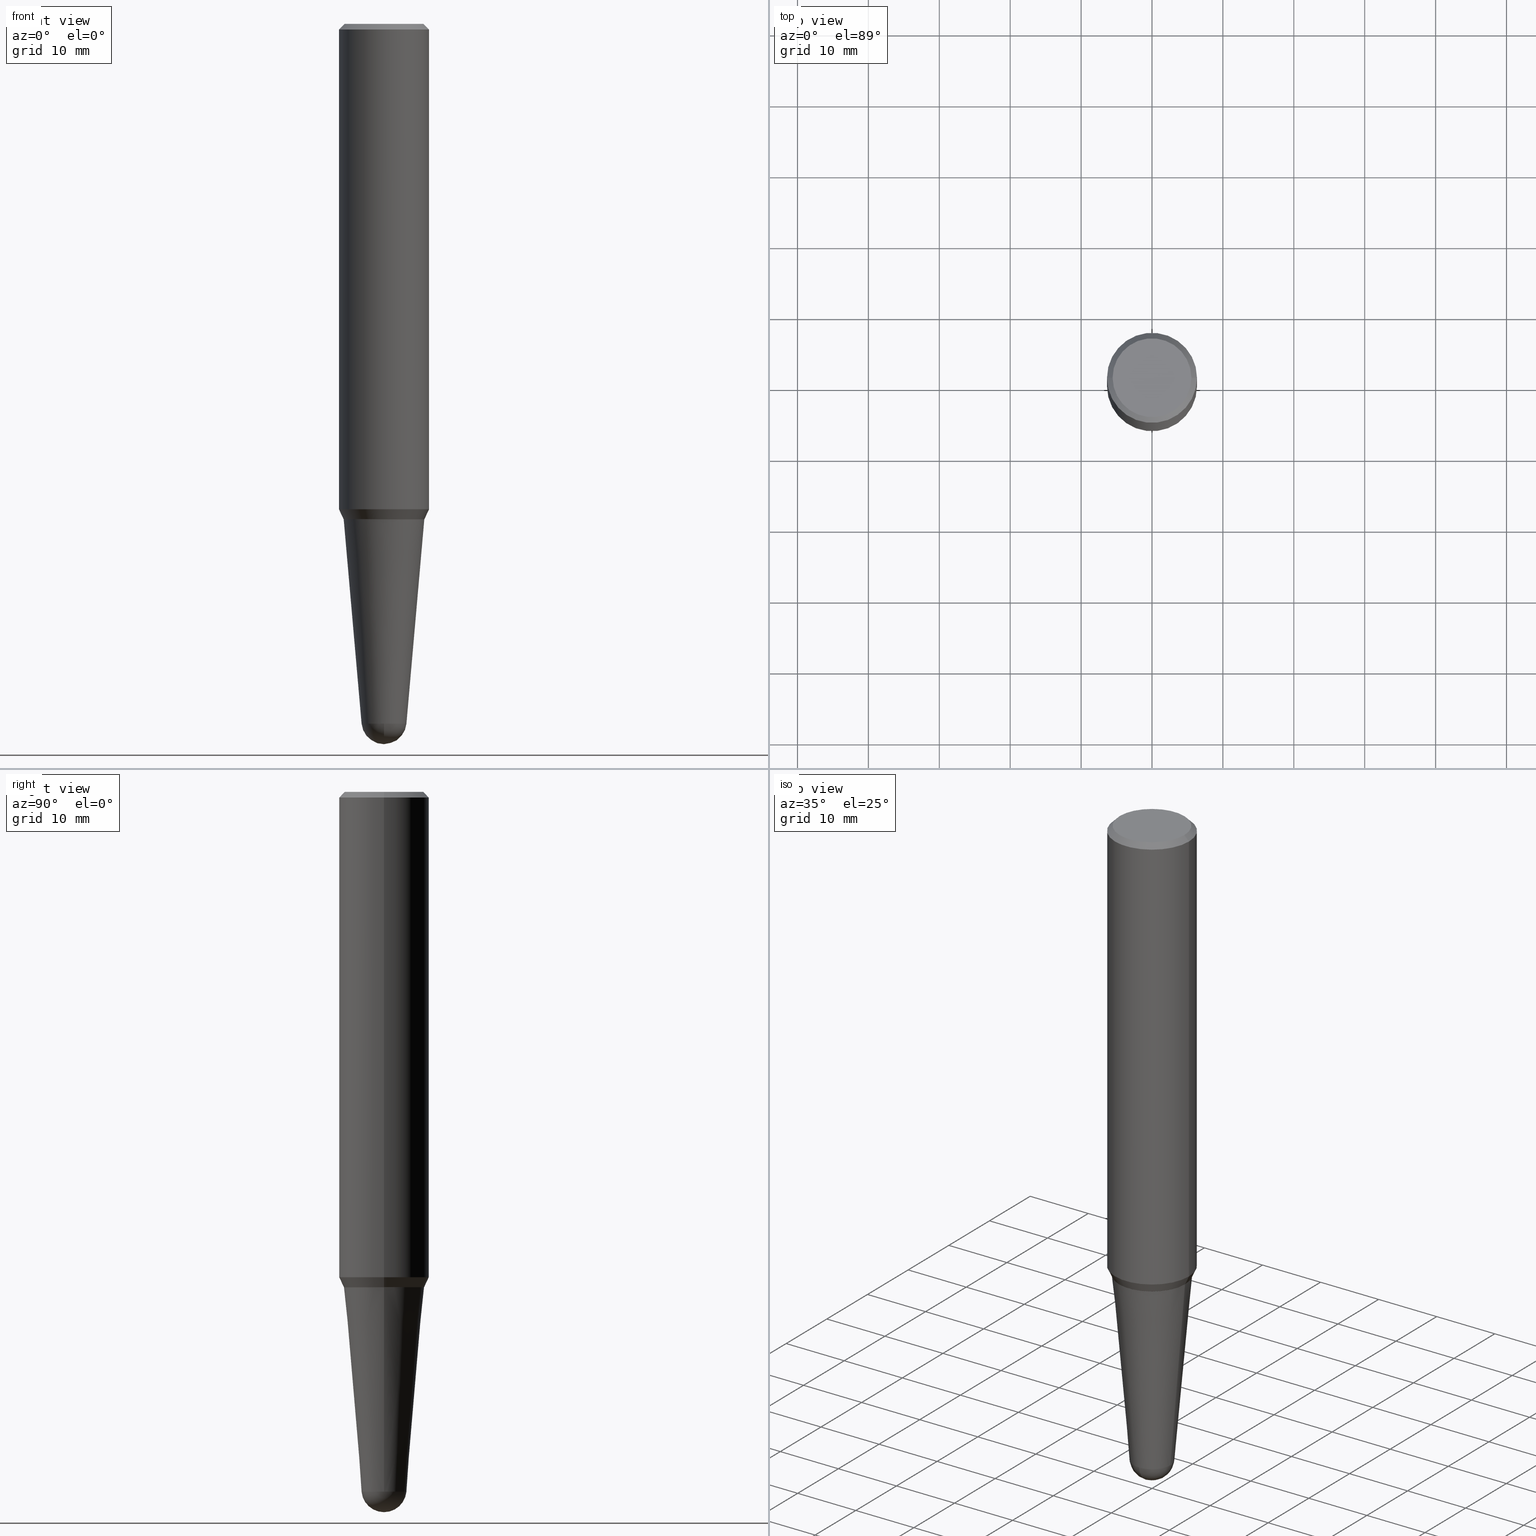
[diagram: canonical four-view strip — front | top / right | iso, engineering-drawing reading convention]
A machine part, canonical four-view strip (front | top / right | iso — engineering-drawing reading convention). The complete STEP part file that produces these views, byte-faithful:
ISO-10303-21;
HEADER;
FILE_DESCRIPTION (( 'STEP AP203' ),
    '1' );
FILE_NAME ('32462.STEP',
    '2024-03-04T15:25:22',
    ( '' ),
    ( '' ),
    'SwSTEP 2.0',
    'SolidWorks 2023',
    '' );
FILE_SCHEMA (( 'CONFIG_CONTROL_DESIGN' ));
ENDSEC;

DATA;
#1 = DIRECTION ( 'NONE',  ( 1.000000000000000000, -6.982962677686268288E-15, 0.000000000000000000 ) ) ;
#2 = CC_DESIGN_PERSON_AND_ORGANIZATION_ASSIGNMENT ( #401, #77, ( #232 ) ) ;
#3 = DIRECTION ( 'NONE',  ( 1.000000000000000000, -6.982962677686265922E-15, 0.000000000000000000 ) ) ;
#4 = CIRCLE ( 'NONE', #223, 0.1249999999999999584 ) ;
#5 = DIRECTION ( 'NONE',  ( -2.445468806185136597E-29, 3.491481338843145583E-15, 1.000000000000000000 ) ) ;
#6 = ORIENTED_EDGE ( 'NONE', *, *, #173, .T. ) ;
#7 = LINE ( 'NONE', #341, #106 ) ;
#8 = EDGE_LOOP ( 'NONE', ( #227, #428, #423, #370 ) ) ;
#9 = CALENDAR_DATE ( 2024, 4, 3 ) ;
#10 = PLANE ( 'NONE',  #377 ) ;
#11 = VECTOR ( 'NONE', #135, 39.37007874015748143 ) ;
#12 = MECHANICAL_CONTEXT ( 'NONE', #258, 'mechanical' ) ;
#13 = APPROVAL_STATUS ( 'not_yet_approved' ) ;
#14 = ADVANCED_FACE ( 'NONE', ( #164 ), #52, .T. ) ;
#15 = DIRECTION ( 'NONE',  ( 6.982962677686265922E-15, 1.000000000000000000, -4.370956789862822727E-15 ) ) ;
#16 = CARTESIAN_POINT ( 'NONE',  ( -0.2500000000000003331, -7.635551372193098540E-15, -2.695677650309841855 ) ) ;
#17 = AXIS2_PLACEMENT_3D ( 'NONE', #87, #412, #371 ) ;
#18 = CARTESIAN_POINT ( 'NONE',  ( 6.723816482606031719E-29, -9.599827941149227567E-15, -2.749499999999999833 ) ) ;
#19 = PRODUCT_RELATED_PRODUCT_CATEGORY ( 'detail', '', ( #232 ) ) ;
#20 = ADVANCED_FACE ( 'NONE', ( #90 ), #320, .T. ) ;
#21 = CARTESIAN_POINT ( 'NONE',  ( -0.1245243372614685956, -1.268272938652447627E-14, -3.885894467843457267 ) ) ;
#22 = SECURITY_CLASSIFICATION ( '', '', #151 ) ;
#23 = CIRCLE ( 'NONE', #407, 0.2244022261595834677 ) ;
#24 = EDGE_CURVE ( 'NONE', #96, #137, #425, .T. ) ;
#25 = APPROVAL ( #442, 'UNSPECIFIED' ) ;
#26 = DIRECTION ( 'NONE',  ( -2.445468806185136597E-29, 3.491481338843145583E-15, 1.000000000000000000 ) ) ;
#27 = DIRECTION ( 'NONE',  ( -2.445468806185136877E-29, 3.491481338843145188E-15, 1.000000000000000000 ) ) ;
#28 = VERTEX_POINT ( 'NONE', #384 ) ;
#29 = CARTESIAN_POINT ( 'NONE',  ( 9.502833705238566151E-29, -1.356752801918924757E-14, -3.885894467843457267 ) ) ;
#30 = ORIENTED_EDGE ( 'NONE', *, *, #79, .F. ) ;
#31 = DESIGN_CONTEXT ( 'detailed design', #189, 'design' ) ;
#32 = EDGE_CURVE ( 'NONE', #28, #268, #444, .T. ) ;
#33 = VERTEX_POINT ( 'NONE', #203 ) ;
#34 = DIRECTION ( 'NONE',  ( 0.08715574274765822138, 2.869589899488888117E-15, 0.9961946980917454342 ) ) ;
#35 = PLANE ( 'NONE',  #426 ) ;
#36 = ORIENTED_EDGE ( 'NONE', *, *, #390, .F. ) ;
#37 = DIRECTION ( 'NONE',  ( -2.445468806185136597E-29, 3.491481338843145583E-15, 1.000000000000000000 ) ) ;
#38 = AXIS2_PLACEMENT_3D ( 'NONE', #50, #299, #459 ) ;
#39 = AXIS2_PLACEMENT_3D ( 'NONE', #275, #26, #60 ) ;
#40 = COORDINATED_UNIVERSAL_TIME_OFFSET ( 5, 0, .BEHIND. ) ;
#41 = DATE_AND_TIME ( #113, #183 ) ;
#42 = DIRECTION ( 'NONE',  ( -2.438088387897960049E-29, 3.491481338843145188E-15, 1.000000000000000000 ) ) ;
#43 = CIRCLE ( 'NONE', #105, 0.2500000000000000000 ) ;
#44 = AXIS2_PLACEMENT_3D ( 'NONE', #381, #419, #132 ) ;
#45 = DIRECTION ( 'NONE',  ( 1.000000000000000000, -6.982962677686265922E-15, 4.876176775795935793E-29 ) ) ;
#46 = VECTOR ( 'NONE', #153, 39.37007874015748854 ) ;
#47 = PERSON_AND_ORGANIZATION ( #122, #338 ) ;
#48 = FACE_OUTER_BOUND ( 'NONE', #394, .T. ) ;
#49 = EDGE_CURVE ( 'NONE', #315, #312, #343, .T. ) ;
#50 = CARTESIAN_POINT ( 'NONE',  ( 7.642090019328565002E-31, -1.091087918388484967E-16, -0.03125000000000005551 ) ) ;
#51 = ORIENTED_EDGE ( 'NONE', *, *, #261, .F. ) ;
#52 = CONICAL_SURFACE ( 'NONE', #72, 0.2244022261595834677, 0.7853981633964921549 ) ;
#53 = AXIS2_PLACEMENT_3D ( 'NONE', #441, #158, #405 ) ;
#54 = EDGE_CURVE ( 'NONE', #217, #336, #363, .T. ) ;
#55 = EDGE_CURVE ( 'NONE', #276, #96, #138, .T. ) ;
#56 = LINE ( 'NONE', #21, #260 ) ;
#57 = ORIENTED_EDGE ( 'NONE', *, *, #418, .T. ) ;
#58 = DIRECTION ( 'NONE',  ( 1.000000000000000000, -6.982962677686265922E-15, 4.883557194083112340E-29 ) ) ;
#59 = CYLINDRICAL_SURFACE ( 'NONE', #44, 0.2500000000000001665 ) ;
#60 = DIRECTION ( 'NONE',  ( 1.000000000000000000, -6.982962677686266711E-15, 4.880466792705917400E-29 ) ) ;
#61 = LENGTH_MEASURE_WITH_UNIT ( LENGTH_MEASURE( 0.02539999999999999897 ), #273 );
#62 = ORIENTED_EDGE ( 'NONE', *, *, #411, .F. ) ;
#63 = CIRCLE ( 'NONE', #201, 0.2244022261595834677 ) ;
#64 = DIRECTION ( 'NONE',  ( -2.445468806185136597E-29, 3.491481338843145583E-15, 1.000000000000000000 ) ) ;
#65 = DIRECTION ( 'NONE',  ( 1.000000000000000000, -6.982962677686265922E-15, 0.000000000000000000 ) ) ;
#66 = EDGE_CURVE ( 'NONE', #217, #410, #417, .T. ) ;
#67 = FACE_OUTER_BOUND ( 'NONE', #274, .T. ) ;
#68 = ORIENTED_EDGE ( 'NONE', *, *, #326, .F. ) ;
#69 = DIRECTION ( 'NONE',  ( -7.105427357601001070E-15, -1.000000000000000000, 0.000000000000000000 ) ) ;
#70 = DIRECTION ( 'NONE',  ( -2.445468806185136597E-29, 3.491481338843145583E-15, 1.000000000000000000 ) ) ;
#71 = EDGE_LOOP ( 'NONE', ( #263, #144, #129, #30 ) ) ;
#72 = AXIS2_PLACEMENT_3D ( 'NONE', #449, #126, #408 ) ;
#73 = AXIS2_PLACEMENT_3D ( 'NONE', #108, #244, #1 ) ;
#74 = EDGE_CURVE ( 'NONE', #410, #279, #358, .T. ) ;
#75 = CALENDAR_DATE ( 2024, 4, 3 ) ;
#76 = ORIENTED_EDGE ( 'NONE', *, *, #112, .T. ) ;
#77 = PERSON_AND_ORGANIZATION_ROLE ( 'design_owner' ) ;
#78 = PERSON_AND_ORGANIZATION_ROLE ( 'classification_officer' ) ;
#79 = EDGE_CURVE ( 'NONE', #234, #137, #7, .T. ) ;
#80 = LOCAL_TIME ( 10, 25, 22.00000000000000000, #435 ) ;
#81 = CLOSED_SHELL ( 'NONE', ( #249, #205, #383, #123, #450 ) ) ;
#82 = PERSON_AND_ORGANIZATION_ROLE ( 'creator' ) ;
#83 = PRODUCT_DEFINITION_FORMATION_WITH_SPECIFIED_SOURCE ( 'ANY', '', #232, .NOT_KNOWN. ) ;
#84 = CARTESIAN_POINT ( 'NONE',  ( 8.695487995605473014E-16, 0.1245243372614550093, -3.885894467843458155 ) ) ;
#85 = VERTEX_POINT ( 'NONE', #380 ) ;
#86 = EDGE_CURVE ( 'NONE', #234, #276, #172, .T. ) ;
#87 = CARTESIAN_POINT ( 'NONE',  ( -1.450455682483482035E-44, 2.070866303999251778E-30, 5.931196827434296760E-16 ) ) ;
#88 = ORIENTED_EDGE ( 'NONE', *, *, #418, .F. ) ;
#89 = AXIS2_PLACEMENT_3D ( 'NONE', #264, #94, #162 ) ;
#90 = FACE_OUTER_BOUND ( 'NONE', #389, .T. ) ;
#91 = CARTESIAN_POINT ( 'NONE',  ( -0.2244022261595834677, -8.004450737783669253E-15, -2.750000000000000444 ) ) ;
#92 = ORIENTED_EDGE ( 'NONE', *, *, #55, .F. ) ;
#93 = CARTESIAN_POINT ( 'NONE',  ( 9.502833705238566151E-29, -1.356752801918924757E-14, -3.885894467843457267 ) ) ;
#94 = DIRECTION ( 'NONE',  ( -2.445468806185136597E-29, 3.491481338843145583E-15, 1.000000000000000000 ) ) ;
#95 = AXIS2_PLACEMENT_3D ( 'NONE', #233, #186, #321 ) ;
#96 = VERTEX_POINT ( 'NONE', #421 ) ;
#97 = FACE_OUTER_BOUND ( 'NONE', #334, .T. ) ;
#98 = PRODUCT_DEFINITION_SHAPE ( 'NONE', 'NONE',  #211 ) ;
#99 = DIRECTION ( 'NONE',  ( -1.000000000000000000, 7.105427357601001070E-15, -4.926315508542082329E-29 ) ) ;
#100 = EDGE_LOOP ( 'NONE', ( #165, #374 ) ) ;
#101 = EDGE_CURVE ( 'NONE', #315, #266, #23, .T. ) ;
#102 = DIRECTION ( 'NONE',  ( -2.445468806185136597E-29, 3.491481338843145583E-15, 1.000000000000000000 ) ) ;
#103 = DIRECTION ( 'NONE',  ( 2.438088387897960049E-29, -3.491481338843145188E-15, -1.000000000000000000 ) ) ;
#104 = ORIENTED_EDGE ( 'NONE', *, *, #239, .T. ) ;
#105 = AXIS2_PLACEMENT_3D ( 'NONE', #393, #204, #278 ) ;
#106 = VECTOR ( 'NONE', #348, 39.37007874015748143 ) ;
#107 = DIRECTION ( 'NONE',  ( -2.445468806185136597E-29, 3.491481338843145583E-15, 1.000000000000000000 ) ) ;
#108 = CARTESIAN_POINT ( 'NONE',  ( 6.725039217009124520E-29, -9.601573681818649859E-15, -2.750000000000000000 ) ) ;
#109 = ORIENTED_EDGE ( 'NONE', *, *, #24, .F. ) ;
#110 = DIRECTION ( 'NONE',  ( 1.000000000000000000, -6.982962677686265922E-15, 0.000000000000000000 ) ) ;
#111 = DIRECTION ( 'NONE',  ( 1.000000000000000000, -6.982962677686265922E-15, 0.000000000000000000 ) ) ;
#112 = EDGE_CURVE ( 'NONE', #266, #33, #180, .T. ) ;
#113 = CALENDAR_DATE ( 2024, 4, 3 ) ;
#114 = CARTESIAN_POINT ( 'NONE',  ( 0.1245243372614685956, -1.280107569464579605E-14, -3.885894467843457267 ) ) ;
#115 = AXIS2_PLACEMENT_3D ( 'NONE', #328, #253, #192 ) ;
#116 = CONICAL_SURFACE ( 'NONE', #295, 0.1245243372614685956, 0.08726646259971652941 ) ;
#117 = APPROVAL_DATE_TIME ( #327, #303 ) ;
#118 = CONICAL_SURFACE ( 'NONE', #415, 0.2500000000000000000, 0.7853981633974511656 ) ;
#119 = CARTESIAN_POINT ( 'NONE',  ( -0.2187500000000002220, 1.582077481663294407E-15, -4.650643080404282152E-16 ) ) ;
#120 = CC_DESIGN_APPROVAL ( #303, ( #22 ) ) ;
#121 = DIRECTION ( 'NONE',  ( -2.445468806185136597E-29, 3.491481338843145583E-15, 1.000000000000000000 ) ) ;
#122 = PERSON ( 'UNSPECIFIED', 'UNSPECIFIED', 'UNSPECIFIED', ('UNSPECIFIED'), ('UNSPECIFIED'), ('UNSPECIFIED') ) ;
#123 = ADVANCED_FACE ( 'NONE', ( #316 ), #116, .T. ) ;
#124 = EDGE_LOOP ( 'NONE', ( #134, #76, #51, #458 ) ) ;
#125 = CARTESIAN_POINT ( 'NONE',  ( -0.2239022261595834395, -8.010652678636579775E-15, -2.750000000000000000 ) ) ;
#126 = DIRECTION ( 'NONE',  ( -2.445468806185136597E-29, 3.491481338843145583E-15, 1.000000000000000000 ) ) ;
#127 = AXIS2_PLACEMENT_3D ( 'NONE', #462, #354, #424 ) ;
#128 = CARTESIAN_POINT ( 'NONE',  ( 0.2244022261595834677, -1.116856605188073658E-14, -2.750000000000000444 ) ) ;
#129 = ORIENTED_EDGE ( 'NONE', *, *, #24, .T. ) ;
#130 = CC_DESIGN_DATE_AND_TIME_ASSIGNMENT ( #188, #251, ( #211 ) ) ;
#131 = DIRECTION ( 'NONE',  ( 2.445468806185136597E-29, -3.491481338843145583E-15, -1.000000000000000000 ) ) ;
#132 = DIRECTION ( 'NONE',  ( 1.000000000000000000, -6.982962677686266711E-15, 4.852736867747362844E-29 ) ) ;
#133 = VECTOR ( 'NONE', #460, 39.37007874015748854 ) ;
#134 = ORIENTED_EDGE ( 'NONE', *, *, #101, .T. ) ;
#135 = DIRECTION ( 'NONE',  ( 0.7071067811865495711, -7.319954787623262356E-15, -0.7071067811865454633 ) ) ;
#136 = CARTESIAN_POINT ( 'NONE',  ( -0.1245243372614685956, -1.034669103258052724E-14, -3.885894467843457267 ) ) ;
#137 = VERTEX_POINT ( 'NONE', #306 ) ;
#138 = LINE ( 'NONE', #174, #11 ) ;
#139 = EDGE_CURVE ( 'NONE', #319, #85, #184, .T. ) ;
#140 = CARTESIAN_POINT ( 'NONE',  ( 6.592195605363162692E-29, -9.411908211593352160E-15, -2.695677650309841855 ) ) ;
#141 = ORIENTED_EDGE ( 'NONE', *, *, #139, .T. ) ;
#142 = CARTESIAN_POINT ( 'NONE',  ( 9.502833705238566151E-29, -1.356752801918924757E-14, -3.885894467843457267 ) ) ;
#143 = CARTESIAN_POINT ( 'NONE',  ( 5.686501290914580814E-45, -8.118816764425588283E-31, -2.325321540202086842E-16 ) ) ;
#144 = ORIENTED_EDGE ( 'NONE', *, *, #55, .T. ) ;
#145 = AXIS2_PLACEMENT_3D ( 'NONE', #18, #413, #300 ) ;
#146 = CARTESIAN_POINT ( 'NONE',  ( 9.502833705238566151E-29, -1.356752801918924757E-14, -3.885894467843457267 ) ) ;
#147 = CARTESIAN_POINT ( 'NONE',  ( -0.2249022261595832184, -8.001801510609557263E-15, -2.749499999999999833 ) ) ;
#148 = ORIENTED_EDGE ( 'NONE', *, *, #66, .F. ) ;
#149 = EDGE_CURVE ( 'NONE', #85, #96, #243, .T. ) ;
#150 = CARTESIAN_POINT ( 'NONE',  ( 0.2500000000000001665, -1.745740669421565692E-15, 5.931196827434418047E-16 ) ) ;
#151 = SECURITY_CLASSIFICATION_LEVEL ( 'unclassified' ) ;
#152 = ORIENTED_EDGE ( 'NONE', *, *, #86, .T. ) ;
#153 = DIRECTION ( 'NONE',  ( 0.4226182617407022724, 2.132291770427156900E-16, 0.9063077870366484934 ) ) ;
#154 = PERSON_AND_ORGANIZATION ( #122, #338 ) ;
#155 = VECTOR ( 'NONE', #34, 39.37007874015748143 ) ;
#156 = ADVANCED_FACE ( 'NONE', ( #213 ), #437, .T. ) ;
#157 = DATE_AND_TIME ( #75, #80 ) ;
#158 = DIRECTION ( 'NONE',  ( -2.445468806185136597E-29, 3.491481338843145583E-15, 1.000000000000000000 ) ) ;
#159 = DIMENSIONAL_EXPONENTS ( 1.000000000000000000, 0.000000000000000000, 0.000000000000000000, 0.000000000000000000, 0.000000000000000000, 0.000000000000000000, 0.000000000000000000 ) ;
#160 = VECTOR ( 'NONE', #240, 39.37007874015748143 ) ;
#161 = AXIS2_PLACEMENT_3D ( 'NONE', #301, #366, #331 ) ;
#162 = DIRECTION ( 'NONE',  ( 1.000000000000000000, -6.982962677686266711E-15, 4.880466792705917400E-29 ) ) ;
#163 = FACE_OUTER_BOUND ( 'NONE', #71, .T. ) ;
#164 = FACE_OUTER_BOUND ( 'NONE', #124, .T. ) ;
#165 = ORIENTED_EDGE ( 'NONE', *, *, #74, .T. ) ;
#166 = CIRCLE ( 'NONE', #238, 0.1245243372614685956 ) ;
#167 = DIRECTION ( 'NONE',  ( -0.08715574274765822138, 4.097473997133056981E-15, 0.9961946980917454342 ) ) ;
#168 = DIRECTION ( 'NONE',  ( -1.000000000000000000, 6.982962677686265922E-15, -4.876176775795935793E-29 ) ) ;
#169 = DIRECTION ( 'NONE',  ( -2.445468806185136597E-29, 3.491481338843145583E-15, 1.000000000000000000 ) ) ;
#170 = DIRECTION ( 'NONE',  ( -1.000000000000000000, 6.982962677686265922E-15, -4.876176775795935793E-29 ) ) ;
#171 = ORIENTED_EDGE ( 'NONE', *, *, #347, .T. ) ;
#172 = CIRCLE ( 'NONE', #39, 0.2187500000000002220 ) ;
#173 = EDGE_CURVE ( 'NONE', #336, #420, #166, .T. ) ;
#174 = CARTESIAN_POINT ( 'NONE',  ( 0.2500000000000000000, -1.824233291281731597E-15, -0.03125000000000005551 ) ) ;
#175 = ORIENTED_EDGE ( 'NONE', *, *, #310, .T. ) ;
#176 = DIRECTION ( 'NONE',  ( 1.000000000000000000, -6.982962677686265922E-15, 0.000000000000000000 ) ) ;
#177 = CARTESIAN_POINT ( 'NONE',  ( -0.2500000000000001665, 1.776356839400254015E-15, 5.931196827434174486E-16 ) ) ;
#178 = ORIENTED_EDGE ( 'NONE', *, *, #32, .F. ) ;
#179 = MANIFOLD_SOLID_BREP ( 'Body-Move/Copy2[2]', #255 ) ;
#180 = LINE ( 'NONE', #313, #256 ) ;
#181 = LINE ( 'NONE', #147, #133 ) ;
#182 = ORIENTED_EDGE ( 'NONE', *, *, #66, .T. ) ;
#183 = LOCAL_TIME ( 10, 25, 22.00000000000000000, #220 ) ;
#184 = CIRCLE ( 'NONE', #289, 0.2500000000000003331 ) ;
#185 =( GEOMETRIC_REPRESENTATION_CONTEXT ( 3 ) GLOBAL_UNCERTAINTY_ASSIGNED_CONTEXT ( ( #281 ) ) GLOBAL_UNIT_ASSIGNED_CONTEXT ( ( #427, #311, #241 ) ) REPRESENTATION_CONTEXT ( 'NONE', 'WORKASPACE' ) );
#186 = DIRECTION ( 'NONE',  ( -2.445468806185136597E-29, 3.491481338843145583E-15, 1.000000000000000000 ) ) ;
#187 = ORIENTED_EDGE ( 'NONE', *, *, #454, .F. ) ;
#188 = DATE_AND_TIME ( #293, #195 ) ;
#189 = APPLICATION_CONTEXT ( 'configuration controlled 3d designs of mechanical parts and assemblies' ) ;
#190 = EDGE_CURVE ( 'NONE', #28, #336, #4, .T. ) ;
#191 = CONICAL_SURFACE ( 'NONE', #53, 0.2249022261595832184, 0.4363323129985856585 ) ;
#192 = DIRECTION ( 'NONE',  ( 1.000000000000000000, 0.000000000000000000, 0.000000000000000000 ) ) ;
#193 = CALENDAR_DATE ( 2024, 4, 3 ) ;
#194 = LINE ( 'NONE', #402, #46 ) ;
#195 = LOCAL_TIME ( 10, 25, 22.00000000000000000, #362 ) ;
#196 = VECTOR ( 'NONE', #27, 39.37007874015748143 ) ;
#197 = ORIENTED_EDGE ( 'NONE', *, *, #446, .F. ) ;
#198 = ORIENTED_EDGE ( 'NONE', *, *, #326, .T. ) ;
#199 = ORIENTED_EDGE ( 'NONE', *, *, #112, .F. ) ;
#200 = DIRECTION ( 'NONE',  ( 1.000000000000000000, -6.982962677686265922E-15, 0.000000000000000000 ) ) ;
#201 = AXIS2_PLACEMENT_3D ( 'NONE', #333, #409, #200 ) ;
#202 = EDGE_LOOP ( 'NONE', ( #171, #345, #109, #245 ) ) ;
#203 = CARTESIAN_POINT ( 'NONE',  ( -0.2249022261595832184, -8.001801510609557263E-15, -2.749499999999999833 ) ) ;
#204 = DIRECTION ( 'NONE',  ( -2.445468806185136597E-29, 3.491481338843145583E-15, 1.000000000000000000 ) ) ;
#205 = ADVANCED_FACE ( 'NONE', ( #67 ), #277, .T. ) ;
#206 = CARTESIAN_POINT ( 'NONE',  ( 9.770155035872819834E-29, -1.310851785081028701E-14, -3.875000000000000000 ) ) ;
#207 = FACE_OUTER_BOUND ( 'NONE', #100, .T. ) ;
#208 = EDGE_LOOP ( 'NONE', ( #350, #284 ) ) ;
#209 = CARTESIAN_POINT ( 'NONE',  ( 6.723816482606031719E-29, -9.599827941149227567E-15, -2.749499999999999833 ) ) ;
#210 = ORIENTED_EDGE ( 'NONE', *, *, #54, .F. ) ;
#211 = PRODUCT_DEFINITION ( 'UNKNOWN', '', #83, #31 ) ;
#212 = ORIENTED_EDGE ( 'NONE', *, *, #454, .T. ) ;
#213 = FACE_OUTER_BOUND ( 'NONE', #8, .T. ) ;
#214 = PERSON_AND_ORGANIZATION ( #122, #338 ) ;
#215 = CIRCLE ( 'NONE', #451, 0.2500000000000003331 ) ;
#216 = DATE_AND_TIME ( #193, #219 ) ;
#217 = VERTEX_POINT ( 'NONE', #114 ) ;
#218 = SHAPE_DEFINITION_REPRESENTATION ( #98, #369 ) ;
#219 = LOCAL_TIME ( 10, 25, 22.00000000000000000, #439 ) ;
#220 = COORDINATED_UNIVERSAL_TIME_OFFSET ( 5, 0, .BEHIND. ) ;
#221 = CC_DESIGN_PERSON_AND_ORGANIZATION_ASSIGNMENT ( #395, #82, ( #211 ) ) ;
#222 = CARTESIAN_POINT ( 'NONE',  ( 7.642090019328565002E-31, -1.091087918388484967E-16, -0.03125000000000005551 ) ) ;
#223 = AXIS2_PLACEMENT_3D ( 'NONE', #378, #58, #235 ) ;
#224 = ORIENTED_EDGE ( 'NONE', *, *, #190, .T. ) ;
#225 = EDGE_LOOP ( 'NONE', ( #152, #386 ) ) ;
#226 = DIRECTION ( 'NONE',  ( 1.000000000000000000, -6.982962677686265922E-15, 0.000000000000000000 ) ) ;
#227 = ORIENTED_EDGE ( 'NONE', *, *, #261, .T. ) ;
#228 = DIRECTION ( 'NONE',  ( 1.000000000000000000, -6.982962677686265922E-15, 0.000000000000000000 ) ) ;
#229 = ADVANCED_FACE ( 'NONE', ( #399 ), #10, .F. ) ;
#230 = ADVANCED_FACE ( 'NONE', ( #292 ), #191, .T. ) ;
#231 = DIRECTION ( 'NONE',  ( 2.438088387897960049E-29, -3.491481338843145188E-15, -1.000000000000000000 ) ) ;
#232 = PRODUCT ( '32462', '32462', '', ( #12 ) ) ;
#233 = CARTESIAN_POINT ( 'NONE',  ( 6.725039217009124520E-29, -9.601573681818649859E-15, -2.750000000000000000 ) ) ;
#234 = VERTEX_POINT ( 'NONE', #119 ) ;
#235 = DIRECTION ( 'NONE',  ( 6.982962677686265922E-15, 1.000000000000000000, 0.000000000000000000 ) ) ;
#236 = DIRECTION ( 'NONE',  ( 1.000000000000000000, -6.982962677686271444E-15, 0.000000000000000000 ) ) ;
#237 = EDGE_LOOP ( 'NONE', ( #433, #57, #198, #182, #36 ) ) ;
#238 = AXIS2_PLACEMENT_3D ( 'NONE', #142, #37, #228 ) ;
#239 = EDGE_CURVE ( 'NONE', #312, #85, #194, .T. ) ;
#240 = DIRECTION ( 'NONE',  ( 0.7071067811858714469, -2.468850131075175456E-15, 0.7071067811872235875 ) ) ;
#241 =( NAMED_UNIT ( * ) SI_UNIT ( $, .STERADIAN. ) SOLID_ANGLE_UNIT ( ) );
#242 = ORIENTED_EDGE ( 'NONE', *, *, #79, .T. ) ;
#243 = LINE ( 'NONE', #150, #280 ) ;
#244 = DIRECTION ( 'NONE',  ( -2.445468806185136597E-29, 3.491481338843145583E-15, 1.000000000000000000 ) ) ;
#245 = ORIENTED_EDGE ( 'NONE', *, *, #149, .F. ) ;
#246 = PERSON_AND_ORGANIZATION ( #122, #338 ) ;
#247 = ORIENTED_EDGE ( 'NONE', *, *, #49, .T. ) ;
#248 = CIRCLE ( 'NONE', #145, 0.2249022261595832184 ) ;
#249 = ADVANCED_FACE ( 'NONE', ( #48 ), #445, .T. ) ;
#250 = PERSON_AND_ORGANIZATION_ROLE ( 'design_supplier' ) ;
#251 = DATE_TIME_ROLE ( 'creation_date' ) ;
#252 = DIRECTION ( 'NONE',  ( -1.000000000000000000, 6.982962677686265922E-15, -4.883557194083112901E-29 ) ) ;
#253 = DIRECTION ( 'NONE',  ( 0.000000000000000000, 0.000000000000000000, 1.000000000000000000 ) ) ;
#254 = CC_DESIGN_DATE_AND_TIME_ASSIGNMENT ( #216, #324, ( #22 ) ) ;
#255 = CLOSED_SHELL ( 'NONE', ( #288, #302, #156, #14, #229, #452, #230, #438, #20, #392 ) ) ;
#256 = VECTOR ( 'NONE', #388, 39.37007874015748143 ) ;
#257 = APPROVAL_ROLE ( '' ) ;
#258 = APPLICATION_CONTEXT ( 'configuration controlled 3d designs of mechanical parts and assemblies' ) ;
#259 = EDGE_LOOP ( 'NONE', ( #62, #382, #104, #262 ) ) ;
#260 = VECTOR ( 'NONE', #167, 39.37007874015748143 ) ;
#261 = EDGE_CURVE ( 'NONE', #312, #33, #248, .T. ) ;
#262 = ORIENTED_EDGE ( 'NONE', *, *, #139, .F. ) ;
#263 = ORIENTED_EDGE ( 'NONE', *, *, #332, .F. ) ;
#264 = CARTESIAN_POINT ( 'NONE',  ( 1.137300258182916163E-44, -1.623763352885117657E-30, -4.650643080404173684E-16 ) ) ;
#265 = EDGE_CURVE ( 'NONE', #266, #315, #63, .T. ) ;
#266 = VERTEX_POINT ( 'NONE', #91 ) ;
#267 = CONICAL_SURFACE ( 'NONE', #305, 0.2244022261595834677, 0.7853981633964921549 ) ;
#268 = VERTEX_POINT ( 'NONE', #373 ) ;
#269 = DIRECTION ( 'NONE',  ( 1.000000000000000000, -6.982962677686269077E-15, 0.000000000000000000 ) ) ;
#270 = AXIS2_PLACEMENT_3D ( 'NONE', #349, #432, #385 ) ;
#271 = EDGE_LOOP ( 'NONE', ( #396, #141, #461, #187 ) ) ;
#272 = DIRECTION ( 'NONE',  ( 1.000000000000000000, -6.982962677686266711E-15, 0.000000000000000000 ) ) ;
#273 =( LENGTH_UNIT ( ) NAMED_UNIT ( * ) SI_UNIT ( $, .METRE. ) );
#274 = EDGE_LOOP ( 'NONE', ( #307, #414, #88, #357 ) ) ;
#275 = CARTESIAN_POINT ( 'NONE',  ( 1.137300258182916163E-44, -1.623763352885117657E-30, -4.650643080404173684E-16 ) ) ;
#276 = VERTEX_POINT ( 'NONE', #335 ) ;
#277 = SPHERICAL_SURFACE ( 'NONE', #403, 0.1249999999999999584 ) ;
#278 = DIRECTION ( 'NONE',  ( 1.000000000000000000, -6.982962677686266711E-15, 0.000000000000000000 ) ) ;
#279 = VERTEX_POINT ( 'NONE', #125 ) ;
#280 = VECTOR ( 'NONE', #391, 39.37007874015748143 ) ;
#281 = UNCERTAINTY_MEASURE_WITH_UNIT (LENGTH_MEASURE( 1.000000000000000082E-05 ), #427, 'distance_accuracy_value', 'NONE');
#282 = CARTESIAN_POINT ( 'NONE',  ( 7.642090019328565002E-31, -1.091087918388484967E-16, -0.03125000000000005551 ) ) ;
#283 = LINE ( 'NONE', #177, #196 ) ;
#284 = ORIENTED_EDGE ( 'NONE', *, *, #265, .F. ) ;
#285 = DIRECTION ( 'NONE',  ( -2.445468806185136597E-29, 3.491481338843145583E-15, 1.000000000000000000 ) ) ;
#286 = APPROVAL_ROLE ( '' ) ;
#287 = EDGE_LOOP ( 'NONE', ( #178, #224, #210, #68 ) ) ;
#288 = ADVANCED_FACE ( 'NONE', ( #163 ), #118, .T. ) ;
#289 = AXIS2_PLACEMENT_3D ( 'NONE', #309, #285, #431 ) ;
#290 = PERSON_AND_ORGANIZATION ( #122, #338 ) ;
#291 = APPLICATION_PROTOCOL_DEFINITION ( 'international standard', 'config_control_design', 1994, #258 ) ;
#292 = FACE_OUTER_BOUND ( 'NONE', #259, .T. ) ;
#293 = CALENDAR_DATE ( 2024, 4, 3 ) ;
#294 = AXIS2_PLACEMENT_3D ( 'NONE', #206, #99, #69 ) ;
#295 = AXIS2_PLACEMENT_3D ( 'NONE', #29, #169, #3 ) ;
#296 = FACE_OUTER_BOUND ( 'NONE', #202, .T. ) ;
#297 = APPROVAL_PERSON_ORGANIZATION ( #290, #25, #257 ) ;
#298 = AXIS2_PLACEMENT_3D ( 'NONE', #209, #70, #236 ) ;
#299 = DIRECTION ( 'NONE',  ( 2.445468806185136597E-29, -3.491481338843145583E-15, -1.000000000000000000 ) ) ;
#300 = DIRECTION ( 'NONE',  ( 1.000000000000000000, -6.982962677686271444E-15, 0.000000000000000000 ) ) ;
#301 = CARTESIAN_POINT ( 'NONE',  ( 9.502833705238566151E-29, -1.356752801918924757E-14, -3.885894467843457267 ) ) ;
#302 = ADVANCED_FACE ( 'NONE', ( #296 ), #406, .T. ) ;
#303 = APPROVAL ( #356, 'UNSPECIFIED' ) ;
#304 = CARTESIAN_POINT ( 'NONE',  ( 0.2239022261595834395, -1.116507457054189200E-14, -2.750000000000000000 ) ) ;
#305 = AXIS2_PLACEMENT_3D ( 'NONE', #342, #422, #111 ) ;
#306 = CARTESIAN_POINT ( 'NONE',  ( -0.2500000000000000000, -2.984151662315848194E-15, -0.03125000000000005551 ) ) ;
#307 = ORIENTED_EDGE ( 'NONE', *, *, #190, .F. ) ;
#308 = CIRCLE ( 'NONE', #325, 0.1245243372614685956 ) ;
#309 = CARTESIAN_POINT ( 'NONE',  ( 6.592195605363162692E-29, -9.411908211593352160E-15, -2.695677650309841855 ) ) ;
#310 = EDGE_CURVE ( 'NONE', #420, #279, #56, .T. ) ;
#311 =( NAMED_UNIT ( * ) PLANE_ANGLE_UNIT ( ) SI_UNIT ( $, .RADIAN. ) );
#312 = VERTEX_POINT ( 'NONE', #448 ) ;
#313 = CARTESIAN_POINT ( 'NONE',  ( -0.2244022261595834677, -8.007099964957781243E-15, -2.750000000000000444 ) ) ;
#314 = CARTESIAN_POINT ( 'NONE',  ( 9.502833705238566151E-29, -1.356752801918924757E-14, -3.885894467843457267 ) ) ;
#315 = VERTEX_POINT ( 'NONE', #128 ) ;
#316 = FACE_OUTER_BOUND ( 'NONE', #237, .T. ) ;
#317 = MANIFOLD_SOLID_BREP ( 'Body-Move/Copy2[1]', #81 ) ;
#318 = CARTESIAN_POINT ( 'NONE',  ( 6.725039217009124520E-29, -9.601573681818649859E-15, -2.750000000000000000 ) ) ;
#319 = VERTEX_POINT ( 'NONE', #16 ) ;
#320 = CONICAL_SURFACE ( 'NONE', #38, 0.2500000000000000000, 0.7853981633974511656 ) ;
#321 = DIRECTION ( 'NONE',  ( 1.000000000000000000, -6.982962677686268288E-15, 0.000000000000000000 ) ) ;
#322 = ORIENTED_EDGE ( 'NONE', *, *, #86, .F. ) ;
#323 = APPROVAL ( #13, 'UNSPECIFIED' ) ;
#324 = DATE_TIME_ROLE ( 'classification_date' ) ;
#325 = AXIS2_PLACEMENT_3D ( 'NONE', #93, #121, #226 ) ;
#326 = EDGE_CURVE ( 'NONE', #268, #217, #308, .T. ) ;
#327 = DATE_AND_TIME ( #9, #367 ) ;
#328 = CARTESIAN_POINT ( 'NONE',  ( 0.000000000000000000, 0.000000000000000000, 0.000000000000000000 ) ) ;
#329 = CC_DESIGN_SECURITY_CLASSIFICATION ( #22, ( #83 ) ) ;
#330 = AXIS2_PLACEMENT_3D ( 'NONE', #143, #103, #168 ) ;
#331 = DIRECTION ( 'NONE',  ( 1.000000000000000000, -6.982962677686265922E-15, 0.000000000000000000 ) ) ;
#332 = EDGE_CURVE ( 'NONE', #276, #234, #387, .T. ) ;
#333 = CARTESIAN_POINT ( 'NONE',  ( 6.725039217009125641E-29, -9.601573681818653015E-15, -2.750000000000000444 ) ) ;
#334 = EDGE_LOOP ( 'NONE', ( #199, #353, #247, #197 ) ) ;
#335 = CARTESIAN_POINT ( 'NONE',  ( 0.2187500000000002220, -1.662483614147128641E-15, -4.650643080404062258E-16 ) ) ;
#336 = VERTEX_POINT ( 'NONE', #84 ) ;
#337 = AXIS2_PLACEMENT_3D ( 'NONE', #146, #64, #110 ) ;
#338 = ORGANIZATION ( 'UNSPECIFIED', 'UNSPECIFIED', '' ) ;
#339 = CC_DESIGN_PERSON_AND_ORGANIZATION_ASSIGNMENT ( #398, #78, ( #22 ) ) ;
#340 = DIRECTION ( 'NONE',  ( -1.000000000000000000, 6.982962677686266711E-15, 0.000000000000000000 ) ) ;
#341 = CARTESIAN_POINT ( 'NONE',  ( -0.2500000000000000000, 1.636631877582718169E-15, -0.03125000000000005551 ) ) ;
#342 = CARTESIAN_POINT ( 'NONE',  ( 6.725039217009125641E-29, -9.601573681818653015E-15, -2.750000000000000444 ) ) ;
#343 = LINE ( 'NONE', #351, #160 ) ;
#344 = FACE_OUTER_BOUND ( 'NONE', #287, .T. ) ;
#345 = ORIENTED_EDGE ( 'NONE', *, *, #400, .T. ) ;
#346 = CIRCLE ( 'NONE', #298, 0.2249022261595832184 ) ;
#347 = EDGE_CURVE ( 'NONE', #85, #319, #215, .T. ) ;
#348 = DIRECTION ( 'NONE',  ( -0.7071067811865495711, 2.468850131082277965E-15, -0.7071067811865454633 ) ) ;
#349 = CARTESIAN_POINT ( 'NONE',  ( 9.770155035872819834E-29, -1.310851785081028701E-14, -3.875000000000000000 ) ) ;
#350 = ORIENTED_EDGE ( 'NONE', *, *, #101, .F. ) ;
#351 = CARTESIAN_POINT ( 'NONE',  ( 0.2244022261595834677, -1.116856605188073658E-14, -2.750000000000000444 ) ) ;
#352 = FACE_OUTER_BOUND ( 'NONE', #225, .T. ) ;
#353 = ORIENTED_EDGE ( 'NONE', *, *, #265, .T. ) ;
#354 = DIRECTION ( 'NONE',  ( -2.445468806185136597E-29, 3.491481338843145583E-15, 1.000000000000000000 ) ) ;
#355 = APPROVAL_PERSON_ORGANIZATION ( #214, #303, #286 ) ;
#356 = APPROVAL_STATUS ( 'not_yet_approved' ) ;
#357 = ORIENTED_EDGE ( 'NONE', *, *, #173, .F. ) ;
#358 = CIRCLE ( 'NONE', #95, 0.2239022261595834395 ) ;
#359 = CARTESIAN_POINT ( 'NONE',  ( 9.770155035872819834E-29, -1.310851785081028701E-14, -3.875000000000000000 ) ) ;
#360 = APPROVAL_DATE_TIME ( #41, #323 ) ;
#361 = ORIENTED_EDGE ( 'NONE', *, *, #74, .F. ) ;
#362 = COORDINATED_UNIVERSAL_TIME_OFFSET ( 5, 0, .BEHIND. ) ;
#363 = CIRCLE ( 'NONE', #337, 0.1245243372614685956 ) ;
#364 = CC_DESIGN_APPROVAL ( #323, ( #211 ) ) ;
#365 = APPROVAL_ROLE ( '' ) ;
#366 = DIRECTION ( 'NONE',  ( -2.445468806185136597E-29, 3.491481338843145583E-15, 1.000000000000000000 ) ) ;
#367 = LOCAL_TIME ( 10, 25, 22.00000000000000000, #40 ) ;
#368 = CIRCLE ( 'NONE', #73, 0.2239022261595834395 ) ;
#369 = ADVANCED_BREP_SHAPE_REPRESENTATION ( '32462', ( #317, #179, #115 ), #185 ) ;
#370 = ORIENTED_EDGE ( 'NONE', *, *, #239, .F. ) ;
#371 = DIRECTION ( 'NONE',  ( 1.000000000000000000, -6.982962677686266711E-15, 4.852736867747362844E-29 ) ) ;
#372 = ORIENTED_EDGE ( 'NONE', *, *, #54, .T. ) ;
#373 = CARTESIAN_POINT ( 'NONE',  ( -8.847986326646746648E-16, -0.1245243372614817517, -3.885894467843456823 ) ) ;
#374 = ORIENTED_EDGE ( 'NONE', *, *, #390, .T. ) ;
#375 = APPROVAL_PERSON_ORGANIZATION ( #246, #323, #365 ) ;
#376 = AXIS2_PLACEMENT_3D ( 'NONE', #282, #107, #272 ) ;
#377 = AXIS2_PLACEMENT_3D ( 'NONE', #443, #42, #45 ) ;
#378 = CARTESIAN_POINT ( 'NONE',  ( 9.770155035872819834E-29, -1.310851785081028701E-14, -3.875000000000000000 ) ) ;
#379 = DIRECTION ( 'NONE',  ( -2.445468806185136597E-29, 3.491481338843145583E-15, 1.000000000000000000 ) ) ;
#380 = CARTESIAN_POINT ( 'NONE',  ( 0.2500000000000003331, -1.115764888101492199E-14, -2.695677650309841855 ) ) ;
#381 = CARTESIAN_POINT ( 'NONE',  ( -1.450455682483482035E-44, 2.070866303999251778E-30, 5.931196827434296760E-16 ) ) ;
#382 = ORIENTED_EDGE ( 'NONE', *, *, #446, .T. ) ;
#383 = ADVANCED_FACE ( 'NONE', ( #344 ), #457, .T. ) ;
#384 = CARTESIAN_POINT ( 'NONE',  ( 1.008118342595333351E-28, -1.353729897567100931E-14, -4.000000000000000000 ) ) ;
#385 = DIRECTION ( 'NONE',  ( 6.982962677686265922E-15, 1.000000000000000000, -4.370956789862822727E-15 ) ) ;
#386 = ORIENTED_EDGE ( 'NONE', *, *, #332, .T. ) ;
#387 = CIRCLE ( 'NONE', #89, 0.2187500000000002220 ) ;
#388 = DIRECTION ( 'NONE',  ( -0.7071067811858714469, 7.493145998867911847E-15, 0.7071067811872235875 ) ) ;
#389 = EDGE_LOOP ( 'NONE', ( #92, #322, #242, #212 ) ) ;
#390 = EDGE_CURVE ( 'NONE', #279, #410, #368, .T. ) ;
#391 = DIRECTION ( 'NONE',  ( -2.445468806185136877E-29, 3.491481338843145188E-15, 1.000000000000000000 ) ) ;
#392 = ADVANCED_FACE ( 'NONE', ( #352 ), #416, .F. ) ;
#393 = CARTESIAN_POINT ( 'NONE',  ( 7.642090019328565002E-31, -1.091087918388484967E-16, -0.03125000000000005551 ) ) ;
#394 = EDGE_LOOP ( 'NONE', ( #6, #175, #361, #148, #372 ) ) ;
#395 = PERSON_AND_ORGANIZATION ( #122, #338 ) ;
#396 = ORIENTED_EDGE ( 'NONE', *, *, #400, .F. ) ;
#397 = CIRCLE ( 'NONE', #455, 0.1245243372614685956 ) ;
#398 = PERSON_AND_ORGANIZATION ( #122, #338 ) ;
#399 = FACE_OUTER_BOUND ( 'NONE', #208, .T. ) ;
#400 = EDGE_CURVE ( 'NONE', #319, #137, #283, .T. ) ;
#401 = PERSON_AND_ORGANIZATION ( #122, #338 ) ;
#402 = CARTESIAN_POINT ( 'NONE',  ( 0.2249022261595832184, -1.117031179255015414E-14, -2.749499999999999833 ) ) ;
#403 = AXIS2_PLACEMENT_3D ( 'NONE', #359, #252, #15 ) ;
#404 = APPROVAL_DATE_TIME ( #157, #25 ) ;
#405 = DIRECTION ( 'NONE',  ( 1.000000000000000000, -6.982962677686271444E-15, 0.000000000000000000 ) ) ;
#406 = CYLINDRICAL_SURFACE ( 'NONE', #17, 0.2500000000000001665 ) ;
#407 = AXIS2_PLACEMENT_3D ( 'NONE', #434, #102, #176 ) ;
#408 = DIRECTION ( 'NONE',  ( 1.000000000000000000, -6.982962677686265922E-15, 0.000000000000000000 ) ) ;
#409 = DIRECTION ( 'NONE',  ( -2.445468806185136597E-29, 3.491481338843145583E-15, 1.000000000000000000 ) ) ;
#410 = VERTEX_POINT ( 'NONE', #304 ) ;
#411 = EDGE_CURVE ( 'NONE', #33, #319, #181, .T. ) ;
#412 = DIRECTION ( 'NONE',  ( -2.445468806185136597E-29, 3.491481338843145583E-15, 1.000000000000000000 ) ) ;
#413 = DIRECTION ( 'NONE',  ( -2.445468806185136597E-29, 3.491481338843145583E-15, 1.000000000000000000 ) ) ;
#414 = ORIENTED_EDGE ( 'NONE', *, *, #32, .T. ) ;
#415 = AXIS2_PLACEMENT_3D ( 'NONE', #222, #131, #340 ) ;
#416 = PLANE ( 'NONE',  #330 ) ;
#417 = LINE ( 'NONE', #456, #155 ) ;
#418 = EDGE_CURVE ( 'NONE', #420, #268, #397, .T. ) ;
#419 = DIRECTION ( 'NONE',  ( -2.445468806185136597E-29, 3.491481338843145583E-15, 1.000000000000000000 ) ) ;
#420 = VERTEX_POINT ( 'NONE', #136 ) ;
#421 = CARTESIAN_POINT ( 'NONE',  ( 0.2500000000000000000, -1.854849461260415384E-15, -0.03125000000000005551 ) ) ;
#422 = DIRECTION ( 'NONE',  ( -2.445468806185136597E-29, 3.491481338843145583E-15, 1.000000000000000000 ) ) ;
#423 = ORIENTED_EDGE ( 'NONE', *, *, #347, .F. ) ;
#424 = DIRECTION ( 'NONE',  ( 1.000000000000000000, -6.982962677686271444E-15, 0.000000000000000000 ) ) ;
#425 = CIRCLE ( 'NONE', #376, 0.2500000000000000000 ) ;
#426 = AXIS2_PLACEMENT_3D ( 'NONE', #318, #231, #170 ) ;
#427 =( CONVERSION_BASED_UNIT ( 'INCH', #61 ) LENGTH_UNIT ( ) NAMED_UNIT ( #159 ) );
#428 = ORIENTED_EDGE ( 'NONE', *, *, #411, .T. ) ;
#429 = CC_DESIGN_APPROVAL ( #25, ( #83 ) ) ;
#430 = CC_DESIGN_PERSON_AND_ORGANIZATION_ASSIGNMENT ( #154, #250, ( #83 ) ) ;
#431 = DIRECTION ( 'NONE',  ( 1.000000000000000000, -6.982962677686269077E-15, 0.000000000000000000 ) ) ;
#432 = DIRECTION ( 'NONE',  ( -1.000000000000000000, 6.982962677686265922E-15, -4.883557194083112901E-29 ) ) ;
#433 = ORIENTED_EDGE ( 'NONE', *, *, #310, .F. ) ;
#434 = CARTESIAN_POINT ( 'NONE',  ( 6.725039217009125641E-29, -9.601573681818653015E-15, -2.750000000000000444 ) ) ;
#435 = COORDINATED_UNIVERSAL_TIME_OFFSET ( 5, 0, .BEHIND. ) ;
#436 = APPLICATION_PROTOCOL_DEFINITION ( 'international standard', 'config_control_design', 1994, #189 ) ;
#437 = CONICAL_SURFACE ( 'NONE', #127, 0.2249022261595832184, 0.4363323129985856585 ) ;
#438 = ADVANCED_FACE ( 'NONE', ( #453 ), #59, .T. ) ;
#439 = COORDINATED_UNIVERSAL_TIME_OFFSET ( 5, 0, .BEHIND. ) ;
#440 = PERSON_AND_ORGANIZATION_ROLE ( 'creator' ) ;
#441 = CARTESIAN_POINT ( 'NONE',  ( 6.723816482606031719E-29, -9.599827941149227567E-15, -2.749499999999999833 ) ) ;
#442 = APPROVAL_STATUS ( 'not_yet_approved' ) ;
#443 = CARTESIAN_POINT ( 'NONE',  ( 2.049499183811360334E-29, -1.629721312457012745E-14, -2.750000000000000000 ) ) ;
#444 = CIRCLE ( 'NONE', #294, 0.1249999999999999584 ) ;
#445 = CONICAL_SURFACE ( 'NONE', #161, 0.1245243372614685956, 0.08726646259971652941 ) ;
#446 = EDGE_CURVE ( 'NONE', #33, #312, #346, .T. ) ;
#447 = CC_DESIGN_PERSON_AND_ORGANIZATION_ASSIGNMENT ( #47, #440, ( #83 ) ) ;
#448 = CARTESIAN_POINT ( 'NONE',  ( 0.2249022261595832184, -1.117031179255015414E-14, -2.749499999999999833 ) ) ;
#449 = CARTESIAN_POINT ( 'NONE',  ( 6.725039217009125641E-29, -9.601573681818653015E-15, -2.750000000000000444 ) ) ;
#450 = ADVANCED_FACE ( 'NONE', ( #207 ), #35, .F. ) ;
#451 = AXIS2_PLACEMENT_3D ( 'NONE', #140, #379, #269 ) ;
#452 = ADVANCED_FACE ( 'NONE', ( #97 ), #267, .T. ) ;
#453 = FACE_OUTER_BOUND ( 'NONE', #271, .T. ) ;
#454 = EDGE_CURVE ( 'NONE', #137, #96, #43, .T. ) ;
#455 = AXIS2_PLACEMENT_3D ( 'NONE', #314, #5, #65 ) ;
#456 = CARTESIAN_POINT ( 'NONE',  ( 0.1245243372614685956, -1.443707681874970169E-14, -3.885894467843457267 ) ) ;
#457 = SPHERICAL_SURFACE ( 'NONE', #270, 0.1249999999999999584 ) ;
#458 = ORIENTED_EDGE ( 'NONE', *, *, #49, .F. ) ;
#459 = DIRECTION ( 'NONE',  ( -1.000000000000000000, 6.982962677686266711E-15, 0.000000000000000000 ) ) ;
#460 = DIRECTION ( 'NONE',  ( -0.4226182617407022724, 6.167240084480852600E-15, 0.9063077870366484934 ) ) ;
#461 = ORIENTED_EDGE ( 'NONE', *, *, #149, .T. ) ;
#462 = CARTESIAN_POINT ( 'NONE',  ( 6.723816482606031719E-29, -9.599827941149227567E-15, -2.749499999999999833 ) ) ;
ENDSEC;
END-ISO-10303-21;
